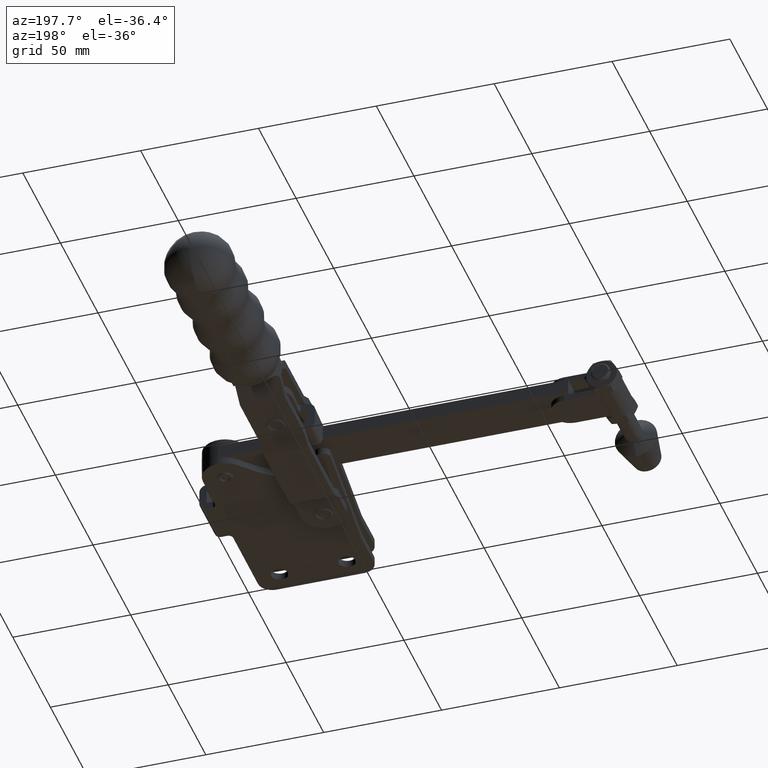
[diagram: clean part render]
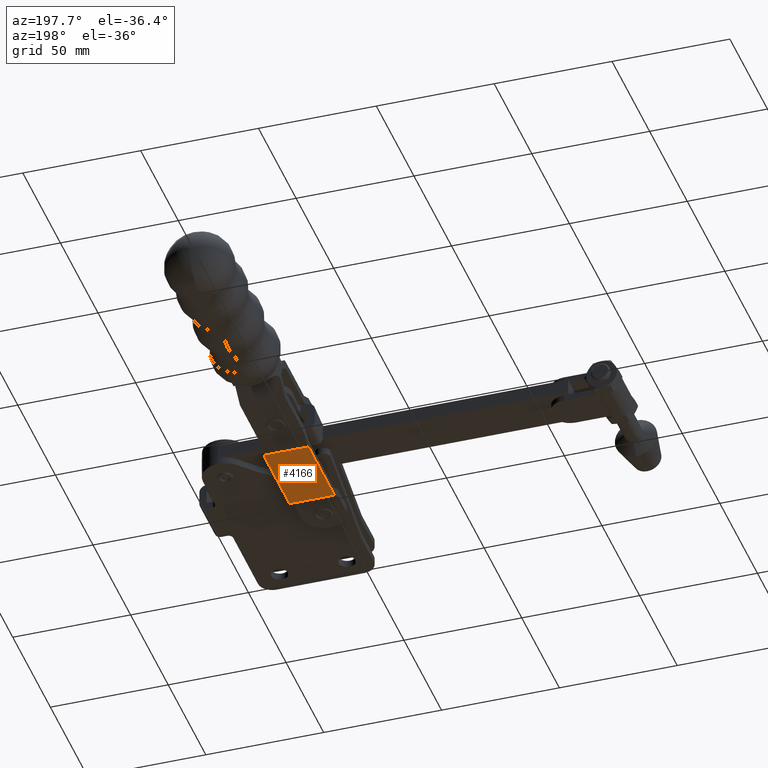
[diagram: same view with one face highlighted and labeled with its STEP entity id]
A machine part, auxiliary view. The second image highlights one B-rep face of the part: STEP entity #4166.
In plain terms, the highlighted planar face has unit normal (-0, -0, -1).
Its self-contained STEP definition (entity closure, byte-faithful):
#124 = CARTESIAN_POINT ( 'NONE',  ( -50.39706354611215000, 43.63050360432191600, -12.19999999999922800 ) ) ;
#264 = LINE ( 'NONE', #3705, #8327 ) ;
#572 = CARTESIAN_POINT ( 'NONE',  ( -50.39706354611215000, 43.63050360432191600, -12.19999999999922800 ) ) ;
#861 = CARTESIAN_POINT ( 'NONE',  ( -31.39523461741051900, 78.12949630504226700, -12.19999999999922800 ) ) ;
#1073 = CARTESIAN_POINT ( 'NONE',  ( -31.39706357281093900, 43.62949635352167400, -12.19999999999922800 ) ) ;
#1416 = ORIENTED_EDGE ( 'NONE', *, *, #9633, .F. ) ;
#2114 = VERTEX_POINT ( 'NONE', #861 ) ;
#2290 = VECTOR ( 'NONE', #8871, 1000.000000000000100 ) ;
#2536 = LINE ( 'NONE', #3884, #2290 ) ;
#2660 = VERTEX_POINT ( 'NONE', #3439 ) ;
#3439 = CARTESIAN_POINT ( 'NONE',  ( -50.39523459071172300, 78.13050355584248100, -12.19999999999922800 ) ) ;
#3668 = ORIENTED_EDGE ( 'NONE', *, *, #4386, .T. ) ;
#3705 = CARTESIAN_POINT ( 'NONE',  ( -50.39706354611215000, 43.63050360432191600, -12.19999999999922800 ) ) ;
#3776 = DIRECTION ( 'NONE',  ( 0.9999999985948002700, -5.301320001219449200E-005, -1.851157092115413300E-026 ) ) ;
#3884 = CARTESIAN_POINT ( 'NONE',  ( -50.39706354611215000, 43.63050360432191600, -12.19999999999922800 ) ) ;
#4041 = LINE ( 'NONE', #8194, #6693 ) ;
#4166 = ADVANCED_FACE ( 'NONE', ( #10177 ), #10245, .T. ) ;
#4386 = EDGE_CURVE ( 'NONE', #2660, #2114, #4041, .T. ) ;
#5010 = ORIENTED_EDGE ( 'NONE', *, *, #6183, .T. ) ;
#5716 = AXIS2_PLACEMENT_3D ( 'NONE', #572, #6366, #6949 ) ;
#6183 = EDGE_CURVE ( 'NONE', #2114, #9764, #8439, .T. ) ;
#6201 = EDGE_LOOP ( 'NONE', ( #5010, #7361, #1416, #3668 ) ) ;
#6366 = DIRECTION ( 'NONE',  ( -1.851216340484665100E-026, -1.117566340262012300E-026, -1.000000000000000000 ) ) ;
#6693 = VECTOR ( 'NONE', #7517, 1000.000000000000100 ) ;
#6949 = DIRECTION ( 'NONE',  ( 0.9999999985948002700, -5.301320001219449200E-005, -1.851157092115413300E-026 ) ) ;
#7361 = ORIENTED_EDGE ( 'NONE', *, *, #9649, .F. ) ;
#7517 = DIRECTION ( 'NONE',  ( 0.9999999985948002700, -5.301320001219449200E-005, -1.851157092115413300E-026 ) ) ;
#8178 = VECTOR ( 'NONE', #8432, 1000.000000000000100 ) ;
#8194 = CARTESIAN_POINT ( 'NONE',  ( -50.39523459071172300, 78.13050355584248100, -12.19999999999922800 ) ) ;
#8327 = VECTOR ( 'NONE', #3776, 1000.000000000000100 ) ;
#8432 = DIRECTION ( 'NONE',  ( -5.301320001219449200E-005, -0.9999999985948002700, 1.117664477593732100E-026 ) ) ;
#8439 = LINE ( 'NONE', #8483, #8178 ) ;
#8483 = CARTESIAN_POINT ( 'NONE',  ( -31.39706357281093900, 43.62949635352167400, -12.19999999999922800 ) ) ;
#8871 = DIRECTION ( 'NONE',  ( -5.301320001219449200E-005, -0.9999999985948002700, 1.117664477593732100E-026 ) ) ;
#9280 = VERTEX_POINT ( 'NONE', #124 ) ;
#9633 = EDGE_CURVE ( 'NONE', #2660, #9280, #2536, .T. ) ;
#9649 = EDGE_CURVE ( 'NONE', #9280, #9764, #264, .T. ) ;
#9764 = VERTEX_POINT ( 'NONE', #1073 ) ;
#10177 = FACE_OUTER_BOUND ( 'NONE', #6201, .T. ) ;
#10245 = PLANE ( 'NONE',  #5716 ) ;